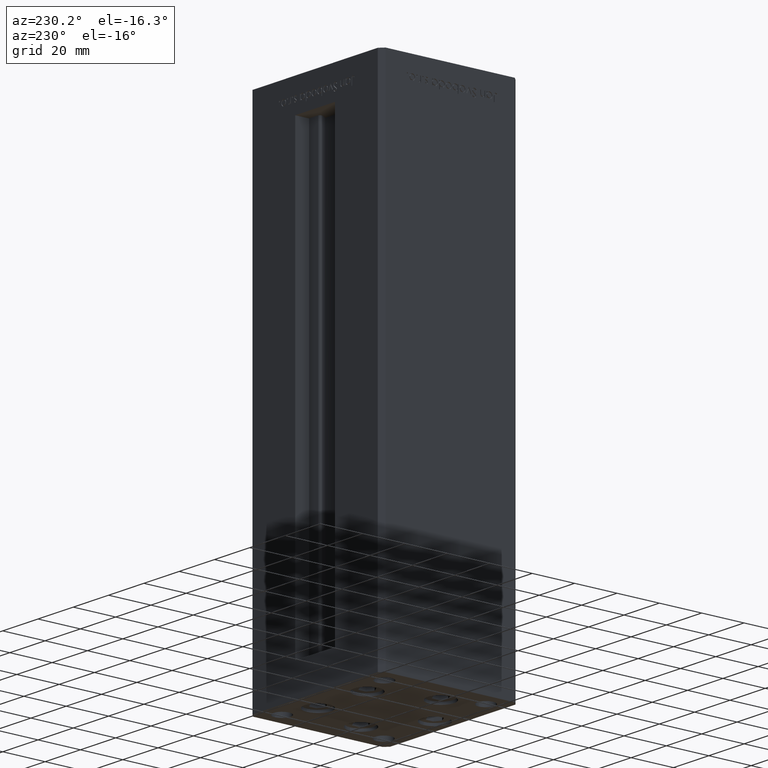
[diagram: clean part render]
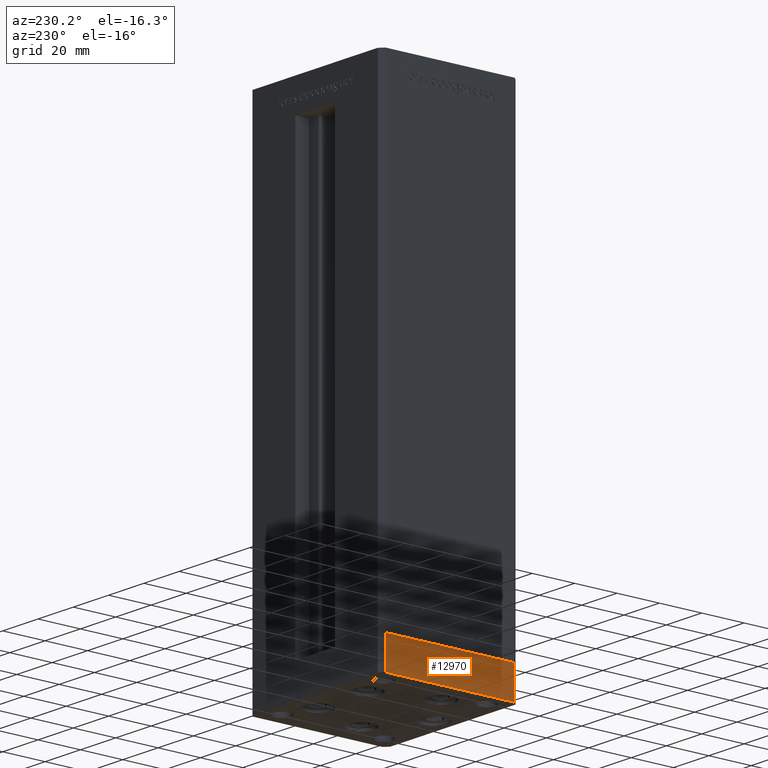
[diagram: same view with one face highlighted and labeled with its STEP entity id]
A machine part, auxiliary view. The second image highlights one B-rep face of the part: STEP entity #12970.
In plain terms, the highlighted planar face has unit normal (-1, 0, 0).
Its self-contained STEP definition (entity closure, byte-faithful):
#432 = PLANE ( 'NONE',  #40560 ) ;
#858 = EDGE_CURVE ( 'NONE', #8461, #36500, #26838, .T. ) ;
#877 = VERTEX_POINT ( 'NONE', #22867 ) ;
#3555 = VECTOR ( 'NONE', #23077, 1000.000000000000000 ) ;
#3962 = LINE ( 'NONE', #20083, #48276 ) ;
#4911 = DIRECTION ( 'NONE',  ( -1.478780668045803018E-15, 1.000000000000000000, 0.000000000000000000 ) ) ;
#6655 = VECTOR ( 'NONE', #51330, 1000.000000000000000 ) ;
#8368 = CARTESIAN_POINT ( 'NONE',  ( 37.50000000000001421, -30.50000000000000711, -15.00000000000000000 ) ) ;
#8461 = VERTEX_POINT ( 'NONE', #45262 ) ;
#8619 = DIRECTION ( 'NONE',  ( 1.000000000000000000, 1.478780668045803018E-15, -0.000000000000000000 ) ) ;
#9132 = FACE_OUTER_BOUND ( 'NONE', #25408, .T. ) ;
#11763 = CARTESIAN_POINT ( 'NONE',  ( 37.49999999999992184, 30.50000000000001066, -15.00000000000000000 ) ) ;
#12970 = ADVANCED_FACE ( 'NONE', ( #9132 ), #432, .T. ) ;
#16901 = ORIENTED_EDGE ( 'NONE', *, *, #858, .T. ) ;
#17701 = EDGE_CURVE ( 'NONE', #877, #36500, #22820, .T. ) ;
#20083 = CARTESIAN_POINT ( 'NONE',  ( 37.50000000000001421, -30.50000000000000711, -15.00000000000000000 ) ) ;
#20967 = ORIENTED_EDGE ( 'NONE', *, *, #40983, .F. ) ;
#22257 = ORIENTED_EDGE ( 'NONE', *, *, #17701, .F. ) ;
#22820 = LINE ( 'NONE', #38916, #3555 ) ;
#22867 = CARTESIAN_POINT ( 'NONE',  ( 37.50000000000001421, -30.50000000000000711, 0.000000000000000000 ) ) ;
#23077 = DIRECTION ( 'NONE',  ( -1.478780668045802821E-15, 1.000000000000000000, 0.000000000000000000 ) ) ;
#24863 = ORIENTED_EDGE ( 'NONE', *, *, #49345, .T. ) ;
#25408 = EDGE_LOOP ( 'NONE', ( #22257, #20967, #24863, #16901 ) ) ;
#26838 = LINE ( 'NONE', #11763, #6655 ) ;
#28427 = VERTEX_POINT ( 'NONE', #8368 ) ;
#31605 = CARTESIAN_POINT ( 'NONE',  ( 37.49999999999992184, 30.50000000000001066, 0.000000000000000000 ) ) ;
#33171 = CARTESIAN_POINT ( 'NONE',  ( 37.50000000000001421, -30.50000000000000711, -15.00000000000000000 ) ) ;
#35476 = DIRECTION ( 'NONE',  ( -1.478780668045802821E-15, 1.000000000000000000, 0.000000000000000000 ) ) ;
#36184 = DIRECTION ( 'NONE',  ( 0.000000000000000000, 0.000000000000000000, 1.000000000000000000 ) ) ;
#36500 = VERTEX_POINT ( 'NONE', #31605 ) ;
#38916 = CARTESIAN_POINT ( 'NONE',  ( 37.50000000000001421, -30.50000000000000711, 0.000000000000000000 ) ) ;
#40560 = AXIS2_PLACEMENT_3D ( 'NONE', #33171, #8619, #4911 ) ;
#40983 = EDGE_CURVE ( 'NONE', #28427, #877, #3962, .T. ) ;
#45262 = CARTESIAN_POINT ( 'NONE',  ( 37.49999999999992184, 30.50000000000001066, -15.00000000000000000 ) ) ;
#46011 = VECTOR ( 'NONE', #35476, 1000.000000000000000 ) ;
#47570 = LINE ( 'NONE', #51782, #46011 ) ;
#48276 = VECTOR ( 'NONE', #36184, 1000.000000000000000 ) ;
#49345 = EDGE_CURVE ( 'NONE', #28427, #8461, #47570, .T. ) ;
#51330 = DIRECTION ( 'NONE',  ( 0.000000000000000000, 0.000000000000000000, 1.000000000000000000 ) ) ;
#51782 = CARTESIAN_POINT ( 'NONE',  ( 37.50000000000001421, -30.50000000000000711, -15.00000000000000000 ) ) ;